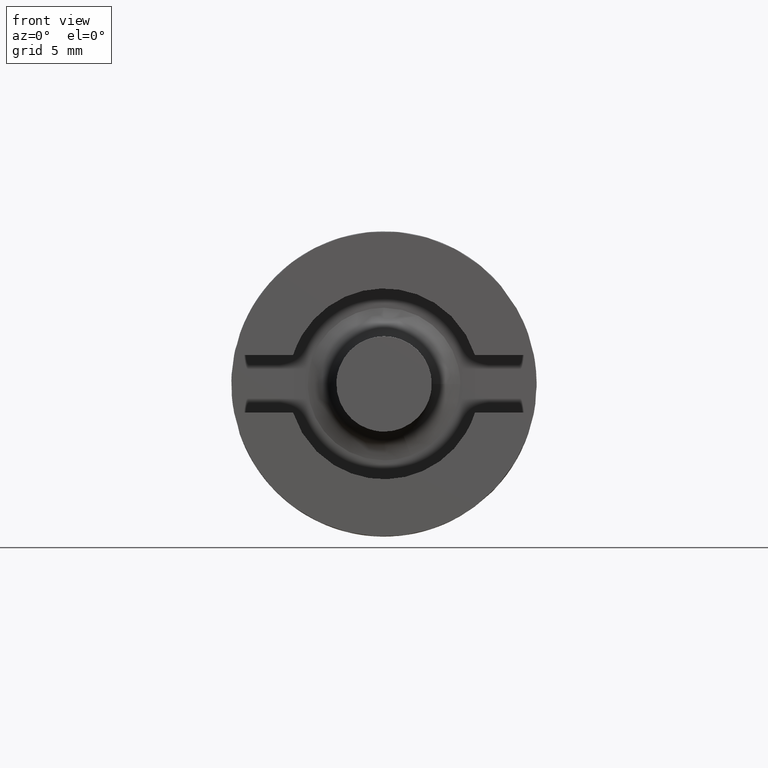
[diagram: clean part render]
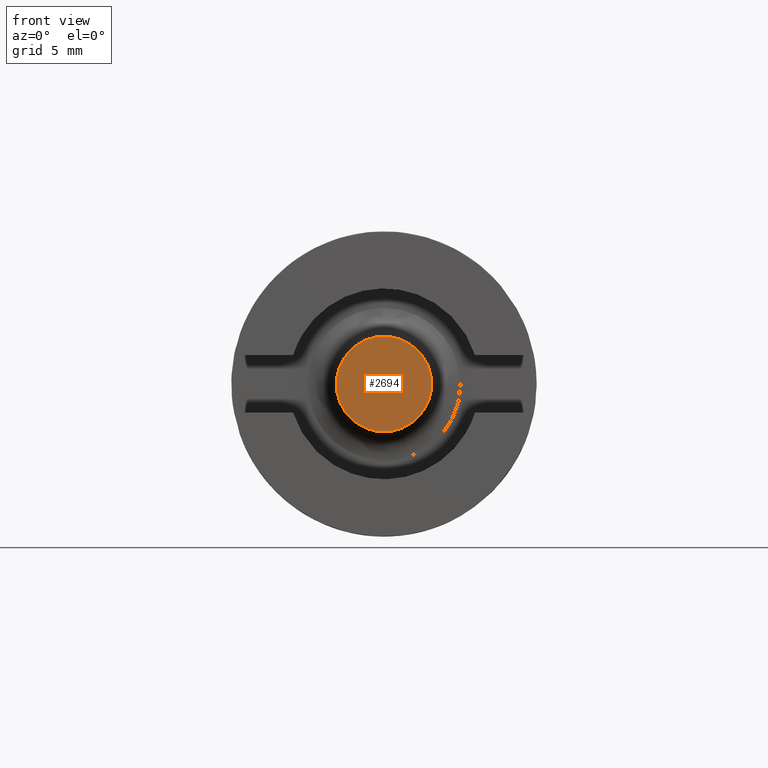
[diagram: same view with one face highlighted and labeled with its STEP entity id]
A machine part, front view. The second image highlights one B-rep face of the part: STEP entity #2694.
In plain terms, the highlighted face is a freeform B-spline surface patch.
Its self-contained STEP definition (entity closure, byte-faithful):
#70=CARTESIAN_POINT('',(-0.879044977739800,-7.0,-2.340359058099546));
#71=VERTEX_POINT('',#70);
#72=CARTESIAN_POINT('',(0.0,-7.0,-2.500000118743630));
#73=VERTEX_POINT('',#72);
#74=CARTESIAN_POINT('',(-0.879044977739800,-7.0,-2.340359058099546));
#75=CARTESIAN_POINT('',(-0.454018486740975,-6.999999999999999,-2.500000118743631));
#76=CARTESIAN_POINT('',(0.0,-7.0,-2.500000118743630));
#84=(BOUNDED_CURVE()B_SPLINE_CURVE(2,(#74,#75,#76),.UNSPECIFIED.,.F.,.U.)B_SPLINE_CURVE_WITH_KNOTS((3,3),(0.440284170897765,0.500000000000000),.UNSPECIFIED.)CURVE()GEOMETRIC_REPRESENTATION_ITEM()RATIONAL_B_SPLINE_CURVE((0.893499554634366,0.930038554400530,1.0))REPRESENTATION_ITEM(''));
#85=EDGE_CURVE('',#71,#73,#84,.T.);
#169=CARTESIAN_POINT('',(-2.495337350812739,-7.000000000000032,0.152617493564959));
#170=VERTEX_POINT('',#169);
#176=CARTESIAN_POINT('',(0.0,-7.0,2.500000118743630));
#177=VERTEX_POINT('',#176);
#178=CARTESIAN_POINT('',(0.0,-7.0,2.500000118743630));
#179=CARTESIAN_POINT('',(-2.351768926059056,-7.0,2.500000118743630));
#180=CARTESIAN_POINT('',(-2.495337350812738,-7.000000000000032,0.152617493564959));
#188=(BOUNDED_CURVE()B_SPLINE_CURVE(2,(#178,#179,#180),.UNSPECIFIED.,.F.,.U.)B_SPLINE_CURVE_WITH_KNOTS((3,3),(0.0,0.239333229326436),.UNSPECIFIED.)CURVE()GEOMETRIC_REPRESENTATION_ITEM()RATIONAL_B_SPLINE_CURVE((1.0,0.719603680374248,0.976072614086726))REPRESENTATION_ITEM(''));
#189=EDGE_CURVE('',#177,#170,#188,.T.);
#191=CARTESIAN_POINT('',(0.0,-7.0,-2.500000118743630));
#192=CARTESIAN_POINT('',(2.500000118743630,-6.999999999999999,-2.500000118743630));
#193=CARTESIAN_POINT('',(2.500000118743630,-7.0,0.0));
#194=CARTESIAN_POINT('',(2.500000118743630,-6.999999999999999,2.500000118743630));
#195=CARTESIAN_POINT('',(0.0,-7.0,2.500000118743630));
#203=(BOUNDED_CURVE()B_SPLINE_CURVE(2,(#191,#192,#193,#194,#195),.UNSPECIFIED.,.F.,.U.)B_SPLINE_CURVE_WITH_KNOTS((3,2,3),(0.500000000000000,0.750000000000000,1.0),.UNSPECIFIED.)CURVE()GEOMETRIC_REPRESENTATION_ITEM()RATIONAL_B_SPLINE_CURVE((1.0,0.707106781186548,1.0,0.707106781186548,1.0))REPRESENTATION_ITEM(''));
#204=EDGE_CURVE('',#73,#177,#203,.T.);
#223=CARTESIAN_POINT('',(-2.495337350812738,-7.000000000000032,0.152617493564959));
#224=CARTESIAN_POINT('',(-2.500000118743630,-6.999999999999999,0.076379975198926));
#225=CARTESIAN_POINT('',(-2.500000118743630,-7.0,0.0));
#226=CARTESIAN_POINT('',(-2.500000118743630,-7.0,-1.731524071465630));
#227=CARTESIAN_POINT('',(-0.879044977739800,-7.0,-2.340359058099546));
#235=(BOUNDED_CURVE()B_SPLINE_CURVE(2,(#223,#224,#225,#226,#227),.UNSPECIFIED.,.F.,.U.)B_SPLINE_CURVE_WITH_KNOTS((3,2,3),(0.239333229326436,0.250000000000000,0.440284170897765),.UNSPECIFIED.)CURVE()GEOMETRIC_REPRESENTATION_ITEM()RATIONAL_B_SPLINE_CURVE((0.976072614086726,0.987503100812300,1.0,0.777068226786018,0.893499554634366))REPRESENTATION_ITEM(''));
#236=EDGE_CURVE('',#170,#71,#235,.T.);
#2683=CARTESIAN_POINT('',(-2.749292895337485,-7.0,2.749750009178785));
#2684=CARTESIAN_POINT('',(2.749728128474308,-7.0,2.749750009178785));
#2685=CARTESIAN_POINT('',(-2.749292895337485,-7.0,-2.749749875068329));
#2686=CARTESIAN_POINT('',(2.749728128474308,-7.0,-2.749749875068329));
#2687=B_SPLINE_SURFACE_WITH_KNOTS('',1,1,((#2683,#2685),(#2684,#2686)),.UNSPECIFIED.,.F.,.F.,.U.,(2,2),(2,2),(0.0,5.499021023811793),(0.0,5.499499884247113),.UNSPECIFIED.);
#2688=ORIENTED_EDGE('',*,*,#189,.T.);
#2689=ORIENTED_EDGE('',*,*,#236,.T.);
#2690=ORIENTED_EDGE('',*,*,#85,.T.);
#2691=ORIENTED_EDGE('',*,*,#204,.T.);
#2692=EDGE_LOOP('',(#2688,#2689,#2690,#2691));
#2693=FACE_OUTER_BOUND('',#2692,.T.);
#2694=ADVANCED_FACE('',(#2693),#2687,.F.);